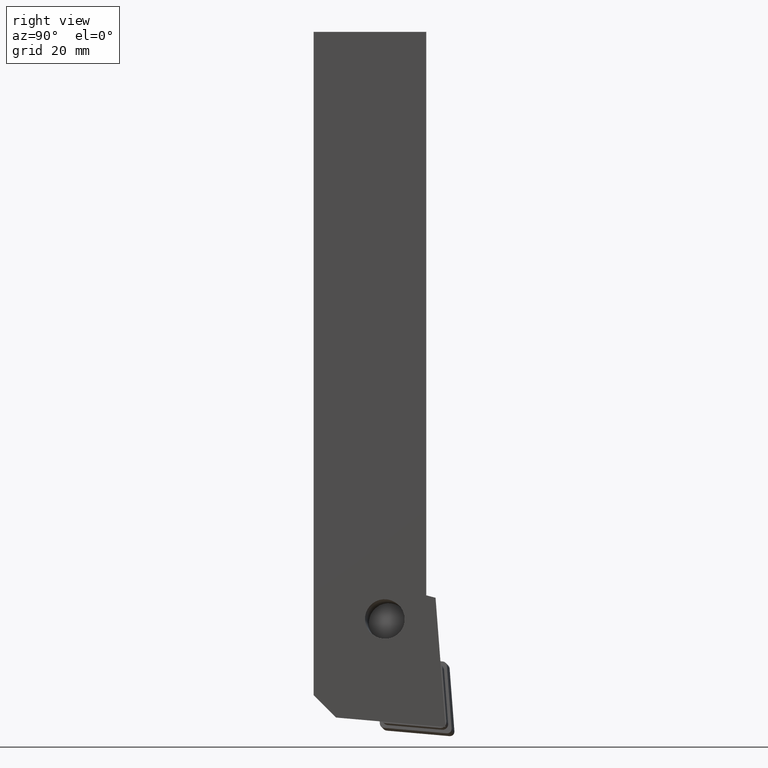
[diagram: clean part render]
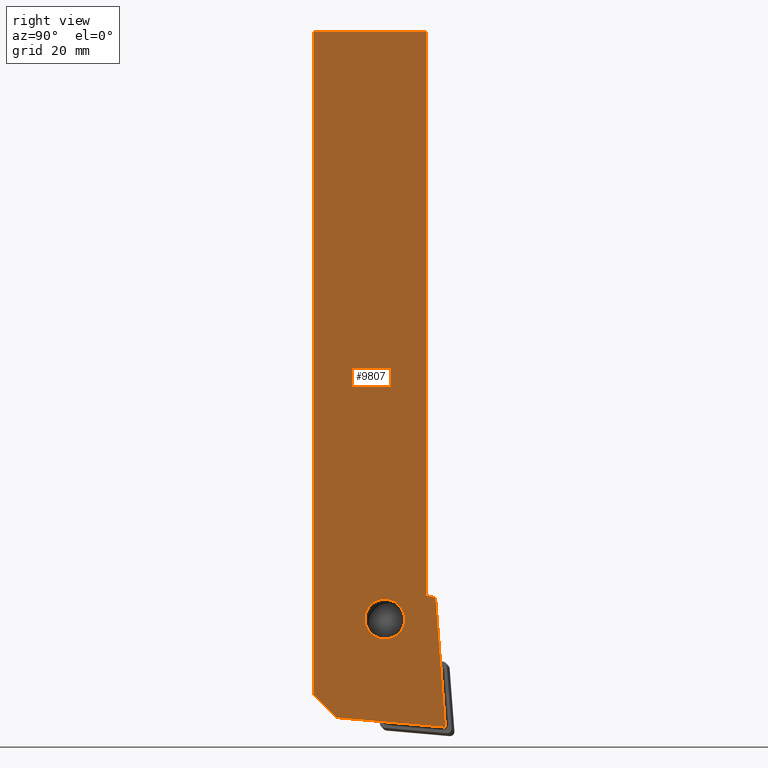
[diagram: same view with one face highlighted and labeled with its STEP entity id]
A machine part, right view. The second image highlights one B-rep face of the part: STEP entity #9807.
In plain terms, the highlighted planar face has unit normal (-1, 0, 0).
Its self-contained STEP definition (entity closure, byte-faithful):
#8880=CARTESIAN_POINT('',(19.999999999999996,20.0,-100.0));
#8881=VERTEX_POINT('',#8880);
#8896=CARTESIAN_POINT('',(19.999999999999996,20.0,0.0));
#8897=VERTEX_POINT('',#8896);
#8904=CARTESIAN_POINT('',(19.999999999999996,20.0,0.0));
#8905=DIRECTION('',(0.0,0.0,-1.0));
#8906=VECTOR('',#8905,100.0);
#8907=LINE('',#8904,#8906);
#8908=EDGE_CURVE('',#8897,#8881,#8907,.T.);
#9252=CARTESIAN_POINT('',(19.999999999999996,15.13928563247064,-106.72557727237843));
#9253=VERTEX_POINT('',#9252);
#9254=CARTESIAN_POINT('',(19.999999999999996,12.643954144603436,-104.21650080107247));
#9255=DIRECTION('',(1.0,0.0,0.0));
#9256=DIRECTION('',(0.0,-0.705161999394289,0.709046228824502));
#9257=AXIS2_PLACEMENT_3D('',#9254,#9255,#9256);
#9258=ELLIPSE('',#9257,3.538664150947742,3.500000000000002);
#9259=EDGE_CURVE('',#9253,#9253,#9258,.T.);
#9411=CARTESIAN_POINT('',(19.999999999999996,4.000000000000005,-121.69459814909274));
#9412=VERTEX_POINT('',#9411);
#9419=CARTESIAN_POINT('',(19.999999999999996,-9.860761E-031,-117.69459814909274));
#9420=VERTEX_POINT('',#9419);
#9421=CARTESIAN_POINT('',(19.999999999999996,4.000000000000004,-121.69459814909274));
#9422=DIRECTION('',(0.0,-0.707106781186547,0.707106781186547));
#9423=VECTOR('',#9422,5.656854249492381);
#9424=LINE('',#9421,#9423);
#9425=EDGE_CURVE('',#9412,#9420,#9424,.T.);
#9443=CARTESIAN_POINT('',(19.999999999999996,-9.860761E-031,0.0));
#9444=VERTEX_POINT('',#9443);
#9445=CARTESIAN_POINT('',(19.999999999999996,-9.860761E-031,0.0));
#9446=DIRECTION('',(0.0,0.0,-1.0));
#9447=VECTOR('',#9446,117.69459814909274);
#9448=LINE('',#9445,#9447);
#9449=EDGE_CURVE('',#9444,#9420,#9448,.T.);
#9705=CARTESIAN_POINT('',(19.999999999999996,23.402504486298191,-123.39373051461769));
#9706=VERTEX_POINT('',#9705);
#9713=CARTESIAN_POINT('',(19.999999999999996,23.402504486298195,-123.39373051461769));
#9714=DIRECTION('',(0.0,-0.996187414182084,0.087238958185048));
#9715=VECTOR('',#9714,19.476761310248577);
#9716=LINE('',#9713,#9715);
#9717=EDGE_CURVE('',#9706,#9412,#9716,.T.);
#9762=CARTESIAN_POINT('',(19.999999999999996,21.646583643476518,-100.44120075753983));
#9763=VERTEX_POINT('',#9762);
#9770=CARTESIAN_POINT('',(19.999999999999996,21.646583643476518,-100.44120075753985));
#9771=DIRECTION('',(0.0,0.076279388650275,-0.997086483143333));
#9772=VECTOR('',#9771,23.01959774313616);
#9773=LINE('',#9770,#9772);
#9774=EDGE_CURVE('',#9763,#9706,#9773,.T.);
#9780=CARTESIAN_POINT('',(19.999999999999996,20.0,0.0));
#9781=DIRECTION('',(-1.0,0.0,0.0));
#9782=DIRECTION('',(0.0,0.0,1.0));
#9783=AXIS2_PLACEMENT_3D('',#9780,#9781,#9782);
#9784=PLANE('',#9783);
#9785=ORIENTED_EDGE('',*,*,#9425,.F.);
#9786=ORIENTED_EDGE('',*,*,#9717,.F.);
#9787=ORIENTED_EDGE('',*,*,#9774,.F.);
#9788=CARTESIAN_POINT('',(19.999999999999996,20.0,-100.00000000000001));
#9789=DIRECTION('',(0.0,0.965925826289068,-0.258819045102523));
#9790=VECTOR('',#9789,1.704668825144088);
#9791=LINE('',#9788,#9790);
#9792=EDGE_CURVE('',#8881,#9763,#9791,.T.);
#9793=ORIENTED_EDGE('',*,*,#9792,.F.);
#9794=ORIENTED_EDGE('',*,*,#8908,.F.);
#9795=CARTESIAN_POINT('',(19.999999999999996,-9.860761E-031,0.0));
#9796=DIRECTION('',(0.0,1.0,0.0));
#9797=VECTOR('',#9796,20.0);
#9798=LINE('',#9795,#9797);
#9799=EDGE_CURVE('',#9444,#8897,#9798,.T.);
#9800=ORIENTED_EDGE('',*,*,#9799,.F.);
#9801=ORIENTED_EDGE('',*,*,#9449,.T.);
#9802=EDGE_LOOP('',(#9785,#9786,#9787,#9793,#9794,#9800,#9801));
#9803=FACE_OUTER_BOUND('',#9802,.T.);
#9804=ORIENTED_EDGE('',*,*,#9259,.F.);
#9805=EDGE_LOOP('',(#9804));
#9806=FACE_BOUND('',#9805,.T.);
#9807=ADVANCED_FACE('',(#9803,#9806),#9784,.F.);